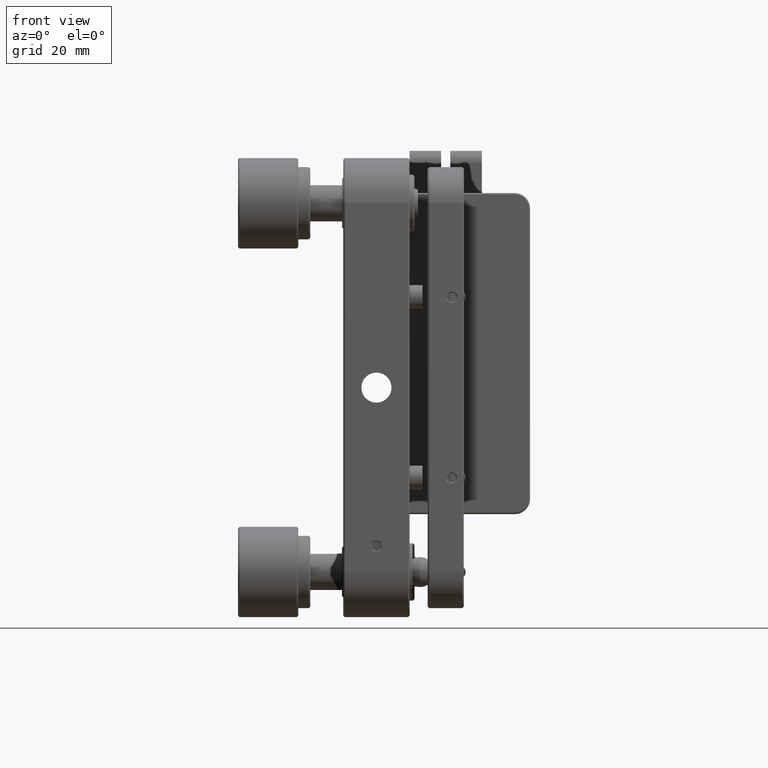
[diagram: clean part render]
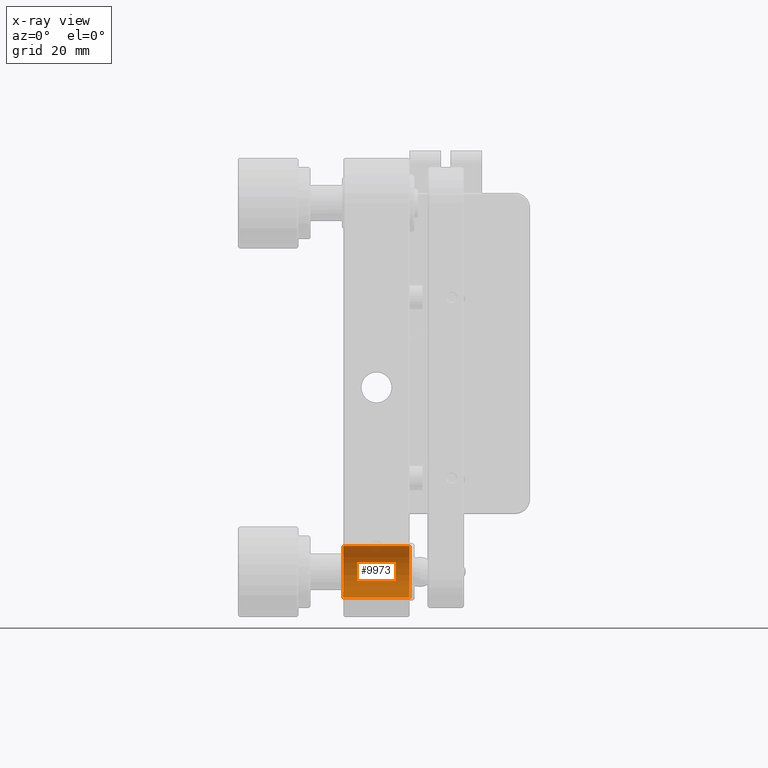
[diagram: x-ray — body ghosted, one internal face saturated and labeled with its STEP entity id]
A machine part, front view, then the same camera in x-ray: the body is ghosted and one INTERNAL B-rep face — a face not visible from any outside direction — is saturated and labeled: STEP entity #9973.
In plain terms, the highlighted cylindrical surface (edge-blend (fillet) strip) has radius 4.3 mm, axis along (-1, 0, 0).
Its self-contained STEP definition (entity closure, byte-faithful):
#2555 = CARTESIAN_POINT ( 'NONE',  ( 5.500000000000000000, 30.59999999999999432, -30.59999999999999432 ) ) ;
#2933 = CARTESIAN_POINT ( 'NONE',  ( -5.499999999999999112, 30.60000000000000142, -30.60000000000000142 ) ) ;
#5512 = AXIS2_PLACEMENT_3D ( 'NONE', #21778, #35913, #17691 ) ;
#5520 = EDGE_CURVE ( 'NONE', #26675, #34509, #22668, .T. ) ;
#6078 = EDGE_CURVE ( 'NONE', #26309, #22118, #41843, .T. ) ;
#7605 = CARTESIAN_POINT ( 'NONE',  ( 5.500000000000000000, 30.60000000000000142, -26.29999999999999005 ) ) ;
#9009 = CARTESIAN_POINT ( 'NONE',  ( 5.500000000000000000, 30.60000000000000142, -34.89999999999999858 ) ) ;
#9973 = ADVANCED_FACE ( 'NONE', ( #39519 ), #39995, .F. ) ;
#11525 = AXIS2_PLACEMENT_3D ( 'NONE', #2555, #21047, #13588 ) ;
#12960 = VECTOR ( 'NONE', #20488, 1000.000000000000000 ) ;
#13588 = DIRECTION ( 'NONE',  ( 0.000000000000000000, -1.613696256722609384E-15, -1.000000000000000000 ) ) ;
#13966 = DIRECTION ( 'NONE',  ( 0.000000000000000000, 0.000000000000000000, 1.000000000000000000 ) ) ;
#13988 = ORIENTED_EDGE ( 'NONE', *, *, #5520, .F. ) ;
#14115 = CIRCLE ( 'NONE', #25626, 4.299999999999998046 ) ;
#14514 = CARTESIAN_POINT ( 'NONE',  ( 6.601200000000000401, 30.60000000000000142, -34.89999999999999858 ) ) ;
#14985 = DIRECTION ( 'NONE',  ( -1.000000000000000000, 0.000000000000000000, 0.000000000000000000 ) ) ;
#17691 = DIRECTION ( 'NONE',  ( 0.000000000000000000, 0.000000000000000000, 1.000000000000000000 ) ) ;
#20488 = DIRECTION ( 'NONE',  ( -1.000000000000000000, 0.000000000000000000, 0.000000000000000000 ) ) ;
#21047 = DIRECTION ( 'NONE',  ( -1.000000000000000000, -0.000000000000000000, -0.000000000000000000 ) ) ;
#21778 = CARTESIAN_POINT ( 'NONE',  ( 6.601200000000000401, 30.60000000000000142, -30.60000000000000142 ) ) ;
#22118 = VERTEX_POINT ( 'NONE', #30961 ) ;
#22668 = LINE ( 'NONE', #14514, #27529 ) ;
#25626 = AXIS2_PLACEMENT_3D ( 'NONE', #2933, #32198, #13966 ) ;
#26309 = VERTEX_POINT ( 'NONE', #7605 ) ;
#26675 = VERTEX_POINT ( 'NONE', #9009 ) ;
#27529 = VECTOR ( 'NONE', #14985, 1000.000000000000000 ) ;
#30120 = CARTESIAN_POINT ( 'NONE',  ( -5.499999999999999112, 30.60000000000000142, -34.89999999999999858 ) ) ;
#30378 = ORIENTED_EDGE ( 'NONE', *, *, #6078, .T. ) ;
#30961 = CARTESIAN_POINT ( 'NONE',  ( -5.499999999999999112, 30.60000000000000142, -26.30000000000000426 ) ) ;
#32198 = DIRECTION ( 'NONE',  ( -1.000000000000000000, 0.000000000000000000, 0.000000000000000000 ) ) ;
#33743 = CIRCLE ( 'NONE', #11525, 4.300000000000005151 ) ;
#34509 = VERTEX_POINT ( 'NONE', #30120 ) ;
#34840 = ORIENTED_EDGE ( 'NONE', *, *, #35811, .T. ) ;
#35811 = EDGE_CURVE ( 'NONE', #22118, #34509, #14115, .T. ) ;
#35913 = DIRECTION ( 'NONE',  ( -1.000000000000000000, 0.000000000000000000, 0.000000000000000000 ) ) ;
#39519 = FACE_OUTER_BOUND ( 'NONE', #43794, .T. ) ;
#39995 = CYLINDRICAL_SURFACE ( 'NONE', #5512, 4.299999999999998046 ) ;
#40808 = EDGE_CURVE ( 'NONE', #26309, #26675, #33743, .T. ) ;
#41843 = LINE ( 'NONE', #42314, #12960 ) ;
#42314 = CARTESIAN_POINT ( 'NONE',  ( 6.601200000000000401, 30.60000000000000142, -26.30000000000000426 ) ) ;
#43794 = EDGE_LOOP ( 'NONE', ( #13988, #46078, #30378, #34840 ) ) ;
#46078 = ORIENTED_EDGE ( 'NONE', *, *, #40808, .F. ) ;